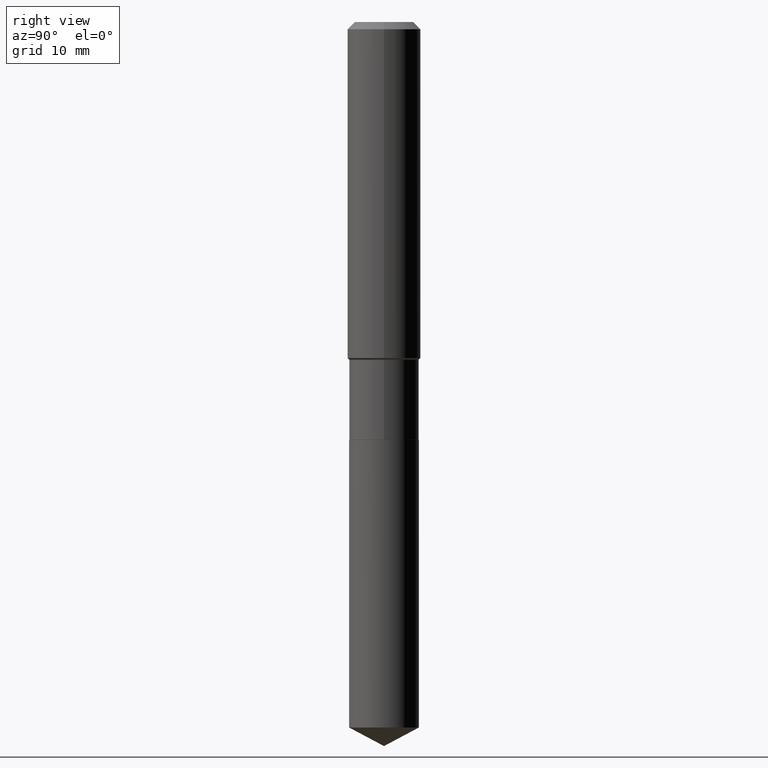
[diagram: clean part render]
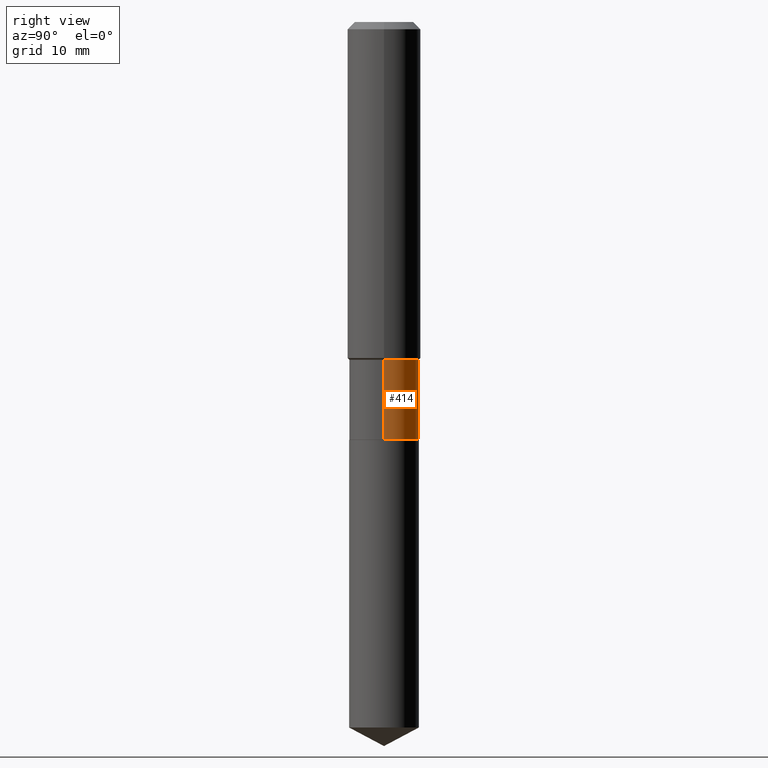
[diagram: same view with one face highlighted and labeled with its STEP entity id]
A machine part, right view. The second image highlights one B-rep face of the part: STEP entity #414.
In plain terms, the highlighted cylindrical surface (edge-blend (fillet) strip) has radius 3.7998 mm, axis along (-0, 0, 1).
Its self-contained STEP definition (entity closure, byte-faithful):
#3 = CARTESIAN_POINT ( 'NONE',  ( 3.548619784655251556E-29, -5.066488570795288817E-15, -1.451100000000000056 ) ) ;
#4 = CIRCLE ( 'NONE', #166, 0.1495999999999999830 ) ;
#13 = VERTEX_POINT ( 'NONE', #441 ) ;
#17 = VERTEX_POINT ( 'NONE', #267 ) ;
#24 = EDGE_CURVE ( 'NONE', #471, #17, #307, .T. ) ;
#30 = VECTOR ( 'NONE', #425, 39.37007874015748143 ) ;
#32 = ORIENTED_EDGE ( 'NONE', *, *, #247, .F. ) ;
#35 = CYLINDRICAL_SURFACE ( 'NONE', #271, 0.1495999999999999830 ) ;
#47 = CARTESIAN_POINT ( 'NONE',  ( 0.1496000000000000107, -7.310812775403659002E-15, -1.794700000000000184 ) ) ;
#79 = LINE ( 'NONE', #81, #30 ) ;
#81 = CARTESIAN_POINT ( 'NONE',  ( -0.1495999999999999830, 1.062971932697109757E-15, -7.358726895021338760E-30 ) ) ;
#125 = LINE ( 'NONE', #171, #420 ) ;
#157 = EDGE_CURVE ( 'NONE', #13, #248, #4, .T. ) ;
#166 = AXIS2_PLACEMENT_3D ( 'NONE', #3, #210, #386 ) ;
#171 = CARTESIAN_POINT ( 'NONE',  ( 0.1495999999999999830, -1.044651216581865404E-15, 7.294760456590720327E-30 ) ) ;
#191 = AXIS2_PLACEMENT_3D ( 'NONE', #222, #337, #485 ) ;
#193 = DIRECTION ( 'NONE',  ( -2.445468806185136597E-29, 3.491481338843145583E-15, 1.000000000000000000 ) ) ;
#203 = DIRECTION ( 'NONE',  ( 1.000000000000000000, -6.982962677686266711E-15, 4.876176775795936353E-29 ) ) ;
#210 = DIRECTION ( 'NONE',  ( -2.445468806185136597E-29, 3.491481338843145583E-15, 1.000000000000000000 ) ) ;
#222 = CARTESIAN_POINT ( 'NONE',  ( 4.388882866460465205E-29, -6.266161558821793401E-15, -1.794700000000000184 ) ) ;
#229 = FACE_OUTER_BOUND ( 'NONE', #403, .T. ) ;
#247 = EDGE_CURVE ( 'NONE', #471, #13, #125, .T. ) ;
#248 = VERTEX_POINT ( 'NONE', #459 ) ;
#267 = CARTESIAN_POINT ( 'NONE',  ( -0.1496000000000000107, -4.603353132111431549E-15, -1.794700000000000184 ) ) ;
#271 = AXIS2_PLACEMENT_3D ( 'NONE', #348, #193, #203 ) ;
#283 = ORIENTED_EDGE ( 'NONE', *, *, #366, .T. ) ;
#307 = CIRCLE ( 'NONE', #191, 0.1496000000000000107 ) ;
#315 = ORIENTED_EDGE ( 'NONE', *, *, #157, .F. ) ;
#337 = DIRECTION ( 'NONE',  ( -2.445468806185136597E-29, 3.491481338843145583E-15, 1.000000000000000000 ) ) ;
#348 = CARTESIAN_POINT ( 'NONE',  ( 0.000000000000000000, 0.000000000000000000, 0.000000000000000000 ) ) ;
#366 = EDGE_CURVE ( 'NONE', #17, #248, #79, .T. ) ;
#386 = DIRECTION ( 'NONE',  ( 1.000000000000000000, -6.982962677686262766E-15, 0.000000000000000000 ) ) ;
#394 = DIRECTION ( 'NONE',  ( -2.445468806185136877E-29, 3.491481338843145188E-15, 1.000000000000000000 ) ) ;
#403 = EDGE_LOOP ( 'NONE', ( #423, #283, #315, #32 ) ) ;
#414 = ADVANCED_FACE ( 'NONE', ( #229 ), #35, .T. ) ;
#420 = VECTOR ( 'NONE', #394, 39.37007874015748143 ) ;
#423 = ORIENTED_EDGE ( 'NONE', *, *, #24, .T. ) ;
#425 = DIRECTION ( 'NONE',  ( -2.445468806185136877E-29, 3.491481338843145188E-15, 1.000000000000000000 ) ) ;
#441 = CARTESIAN_POINT ( 'NONE',  ( 0.1495999999999999830, -6.111139787377153629E-15, -1.451100000000000056 ) ) ;
#459 = CARTESIAN_POINT ( 'NONE',  ( -0.1495999999999999830, -4.603353132111431549E-15, -1.451100000000000056 ) ) ;
#471 = VERTEX_POINT ( 'NONE', #47 ) ;
#485 = DIRECTION ( 'NONE',  ( 1.000000000000000000, -6.982962677686268288E-15, 0.000000000000000000 ) ) ;